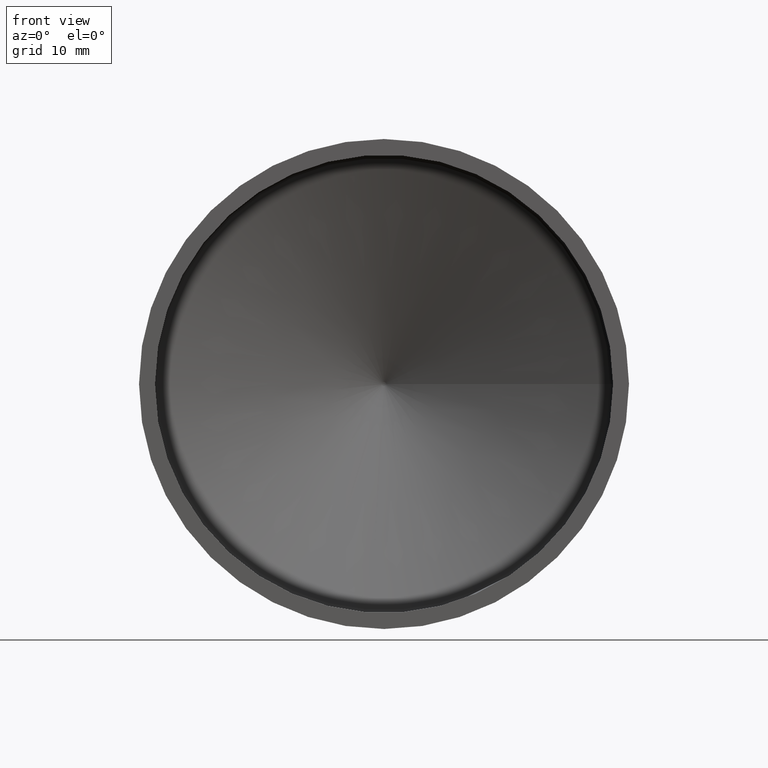
[diagram: clean part render]
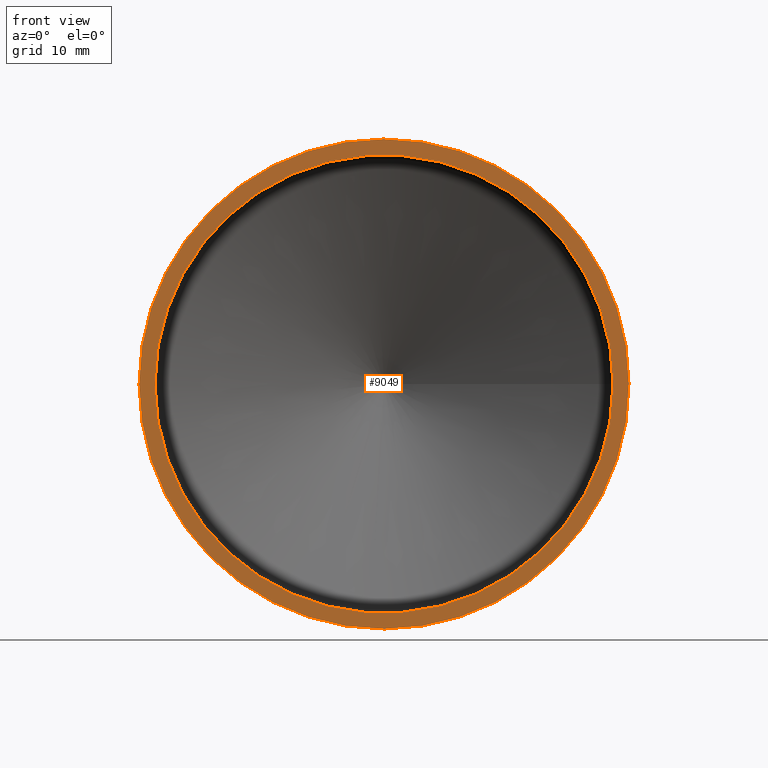
[diagram: same view with one face highlighted and labeled with its STEP entity id]
A machine part, front view. The second image highlights one B-rep face of the part: STEP entity #9049.
In plain terms, the highlighted planar face has unit normal (0, -1, -0).
Its self-contained STEP definition (entity closure, byte-faithful):
#117 = CARTESIAN_POINT ( 'NONE',  ( 23.00000000000000000, 4.694479396731526800E-016, 0.0000000000000000000 ) ) ;
#802 = CARTESIAN_POINT ( 'NONE',  ( 21.50000000000000000, -1.530808498934194900E-017, 0.0000000000000000000 ) ) ;
#887 = CARTESIAN_POINT ( 'NONE',  ( 4.490371596873634900E-016, 0.0000000000000000000, 0.0000000000000000000 ) ) ;
#1032 = EDGE_LOOP ( 'NONE', ( #7268 ) ) ;
#1093 = CARTESIAN_POINT ( 'NONE',  ( 21.50000000000000000, 4.388317696944688500E-016, 0.0000000000000000000 ) ) ;
#1102 = CIRCLE ( 'NONE', #3610, 23.00000000000000000 ) ;
#1352 = EDGE_CURVE ( 'NONE', #1885, #1885, #1102, .T. ) ;
#1608 = PLANE ( 'NONE',  #6403 ) ;
#1681 = DIRECTION ( 'NONE',  ( 1.000000000000000000, 2.041077998578925000E-017, 0.0000000000000000000 ) ) ;
#1885 = VERTEX_POINT ( 'NONE', #117 ) ;
#2251 = EDGE_CURVE ( 'NONE', #7220, #7220, #4665, .T. ) ;
#2298 = DIRECTION ( 'NONE',  ( 1.000000000000000000, 2.041077998578925000E-017, 0.0000000000000000000 ) ) ;
#2344 = DIRECTION ( 'NONE',  ( 2.041077998578925000E-017, -1.000000000000000000, -0.0000000000000000000 ) ) ;
#2766 = ORIENTED_EDGE ( 'NONE', *, *, #2251, .F. ) ;
#2897 = FACE_OUTER_BOUND ( 'NONE', #1032, .T. ) ;
#3038 = EDGE_LOOP ( 'NONE', ( #2766 ) ) ;
#3610 = AXIS2_PLACEMENT_3D ( 'NONE', #887, #5202, #8724 ) ;
#4665 = CIRCLE ( 'NONE', #5292, 21.50000000000000000 ) ;
#5202 = DIRECTION ( 'NONE',  ( 2.041077998578925000E-017, -1.000000000000000000, -0.0000000000000000000 ) ) ;
#5292 = AXIS2_PLACEMENT_3D ( 'NONE', #7398, #2344, #1681 ) ;
#6403 = AXIS2_PLACEMENT_3D ( 'NONE', #802, #6489, #2298 ) ;
#6489 = DIRECTION ( 'NONE',  ( 2.041077998578925000E-017, -1.000000000000000000, -0.0000000000000000000 ) ) ;
#6556 = FACE_BOUND ( 'NONE', #3038, .T. ) ;
#7220 = VERTEX_POINT ( 'NONE', #1093 ) ;
#7268 = ORIENTED_EDGE ( 'NONE', *, *, #1352, .T. ) ;
#7398 = CARTESIAN_POINT ( 'NONE',  ( 4.490371596873634900E-016, 0.0000000000000000000, 0.0000000000000000000 ) ) ;
#8724 = DIRECTION ( 'NONE',  ( 1.000000000000000000, 2.041077998578924700E-017, 0.0000000000000000000 ) ) ;
#9049 = ADVANCED_FACE ( 'NONE', ( #2897, #6556 ), #1608, .T. ) ;